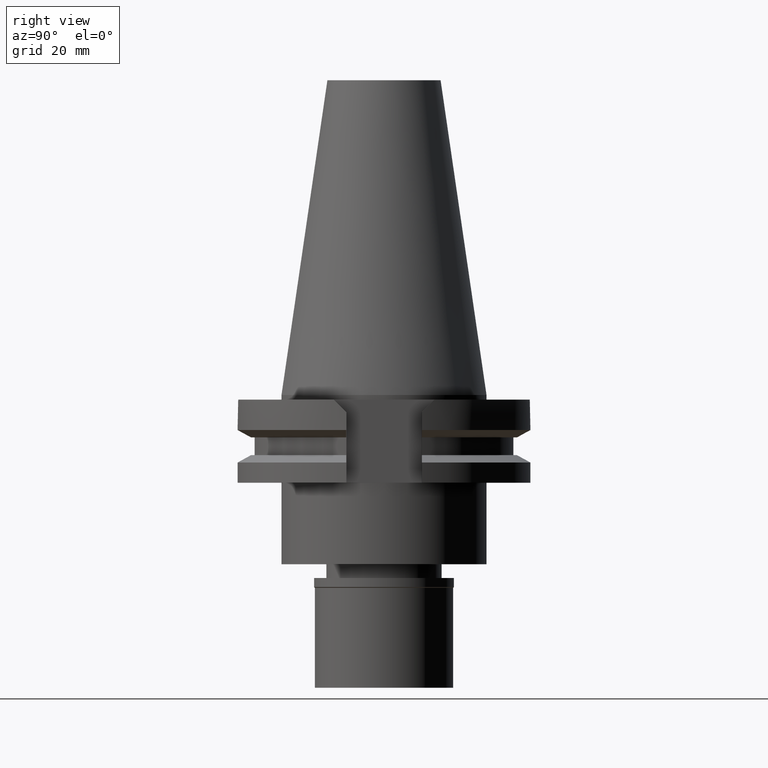
[diagram: clean part render]
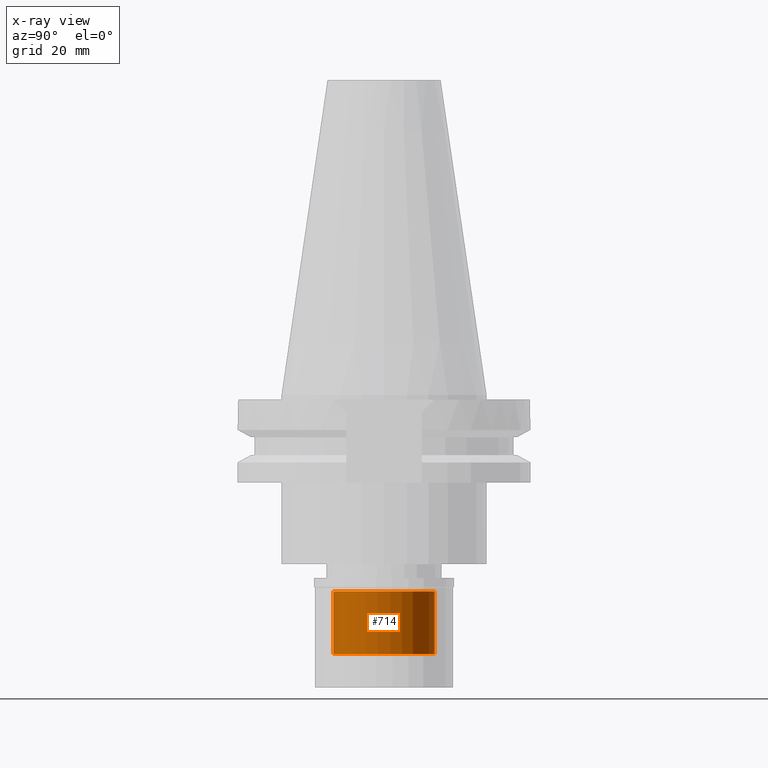
[diagram: x-ray — body ghosted, one internal face saturated and labeled with its STEP entity id]
A machine part, right view, then the same camera in x-ray: the body is ghosted and one INTERNAL B-rep face — a face not visible from any outside direction — is saturated and labeled: STEP entity #714.
In plain terms, the highlighted cylindrical surface (partial cylindrical patch) has radius 11 mm, axis along (0, 0, -1).
Its self-contained STEP definition (entity closure, byte-faithful):
#121 = EDGE_CURVE ( 'NONE', #201, #2207, #3059, .T. ) ;
#201 = VERTEX_POINT ( 'NONE', #1139 ) ;
#230 = EDGE_CURVE ( 'NONE', #2207, #3079, #499, .T. ) ;
#288 = ORIENTED_EDGE ( 'NONE', *, *, #121, .T. ) ;
#319 = DIRECTION ( 'NONE',  ( 0.0000000000000000000, 0.0000000000000000000, 1.000000000000000000 ) ) ;
#324 = DIRECTION ( 'NONE',  ( 0.0000000000000000000, -1.000000000000000000, 0.0000000000000000000 ) ) ;
#414 = DIRECTION ( 'NONE',  ( 0.0000000000000000000, 0.0000000000000000000, -1.000000000000000000 ) ) ;
#482 = CYLINDRICAL_SURFACE ( 'NONE', #2752, 11.00000000000000000 ) ;
#483 = CARTESIAN_POINT ( 'NONE',  ( 0.0000000000000000000, 0.0000000000000000000, -16.50000000000000000 ) ) ;
#484 = ORIENTED_EDGE ( 'NONE', *, *, #1578, .T. ) ;
#499 = LINE ( 'NONE', #1157, #2900 ) ;
#571 = DIRECTION ( 'NONE',  ( 0.0000000000000000000, 0.0000000000000000000, 1.000000000000000000 ) ) ;
#714 = ADVANCED_FACE ( 'NONE', ( #2620 ), #482, .F. ) ;
#777 = CARTESIAN_POINT ( 'NONE',  ( 0.0000000000000000000, 0.0000000000000000000, 0.0000000000000000000 ) ) ;
#828 = CARTESIAN_POINT ( 'NONE',  ( 0.0000000000000000000, 11.00000000000000000, -2.899999999999999911 ) ) ;
#838 = CARTESIAN_POINT ( 'NONE',  ( 0.0000000000000000000, 11.00000000000000000, -16.50000000000000000 ) ) ;
#1047 = AXIS2_PLACEMENT_3D ( 'NONE', #1557, #571, #1778 ) ;
#1139 = CARTESIAN_POINT ( 'NONE',  ( 0.0000000000000000000, 11.00000000000000000, -16.50000000000000000 ) ) ;
#1157 = CARTESIAN_POINT ( 'NONE',  ( 0.0000000000000000000, -11.00000000000000000, -16.50000000000000000 ) ) ;
#1163 = EDGE_LOOP ( 'NONE', ( #288, #2658, #484, #2512 ) ) ;
#1431 = VECTOR ( 'NONE', #319, 1000.000000000000000 ) ;
#1456 = DIRECTION ( 'NONE',  ( 0.0000000000000000000, 0.0000000000000000000, 1.000000000000000000 ) ) ;
#1483 = VERTEX_POINT ( 'NONE', #828 ) ;
#1557 = CARTESIAN_POINT ( 'NONE',  ( 0.0000000000000000000, 0.0000000000000000000, -2.899999999999999911 ) ) ;
#1578 = EDGE_CURVE ( 'NONE', #3079, #1483, #3114, .T. ) ;
#1688 = AXIS2_PLACEMENT_3D ( 'NONE', #483, #414, #2390 ) ;
#1778 = DIRECTION ( 'NONE',  ( 0.0000000000000000000, -1.000000000000000000, 0.0000000000000000000 ) ) ;
#1783 = LINE ( 'NONE', #838, #1431 ) ;
#1889 = CARTESIAN_POINT ( 'NONE',  ( 0.0000000000000000000, -11.00000000000000000, -2.899999999999999911 ) ) ;
#2207 = VERTEX_POINT ( 'NONE', #2420 ) ;
#2390 = DIRECTION ( 'NONE',  ( 0.0000000000000000000, 1.000000000000000000, 0.0000000000000000000 ) ) ;
#2420 = CARTESIAN_POINT ( 'NONE',  ( 0.0000000000000000000, -11.00000000000000000, -16.50000000000000000 ) ) ;
#2467 = DIRECTION ( 'NONE',  ( 0.0000000000000000000, 0.0000000000000000000, -1.000000000000000000 ) ) ;
#2512 = ORIENTED_EDGE ( 'NONE', *, *, #2741, .F. ) ;
#2620 = FACE_OUTER_BOUND ( 'NONE', #1163, .T. ) ;
#2658 = ORIENTED_EDGE ( 'NONE', *, *, #230, .T. ) ;
#2741 = EDGE_CURVE ( 'NONE', #201, #1483, #1783, .T. ) ;
#2752 = AXIS2_PLACEMENT_3D ( 'NONE', #777, #2467, #324 ) ;
#2900 = VECTOR ( 'NONE', #1456, 1000.000000000000000 ) ;
#3059 = CIRCLE ( 'NONE', #1688, 11.00000000000000000 ) ;
#3079 = VERTEX_POINT ( 'NONE', #1889 ) ;
#3114 = CIRCLE ( 'NONE', #1047, 11.00000000000000000 ) ;